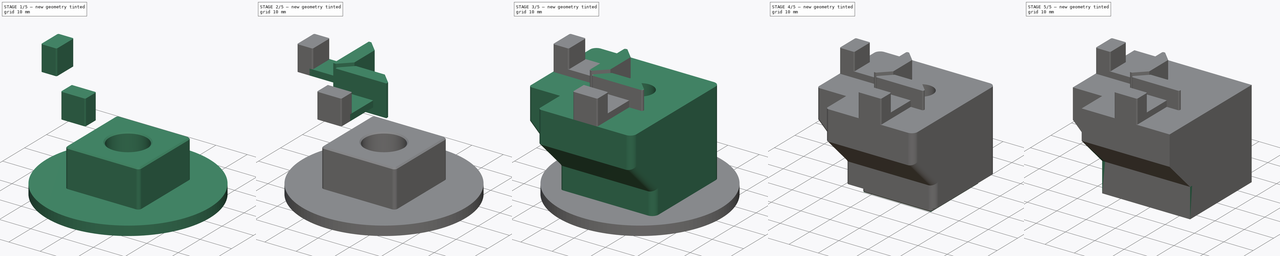
[diagram: build sequence overview — one tinted view per stage of 5, left to right]
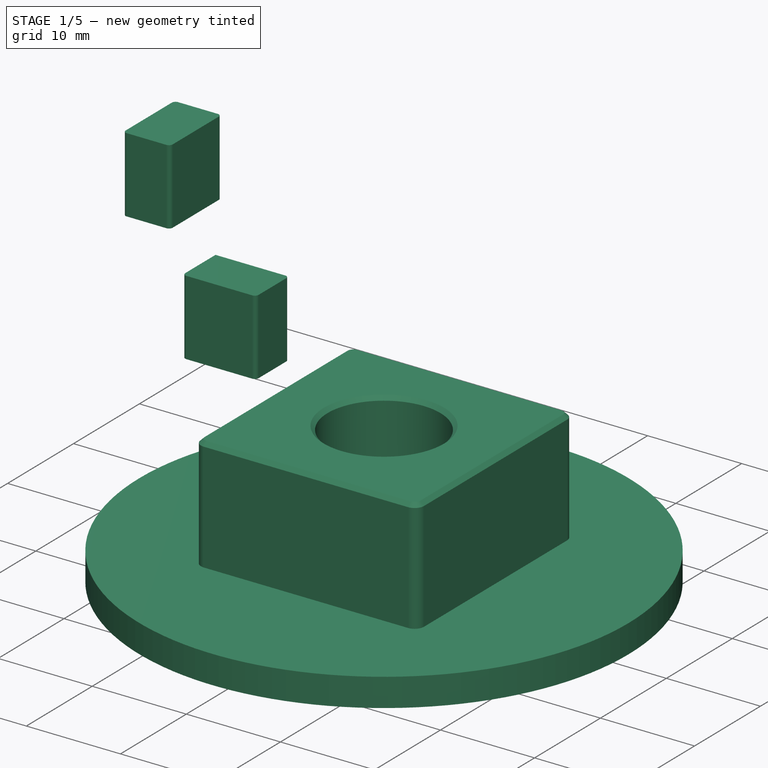
[diagram: stage 1 of 5 — iso view after this stage's code; geometry added in this stage tinted green]
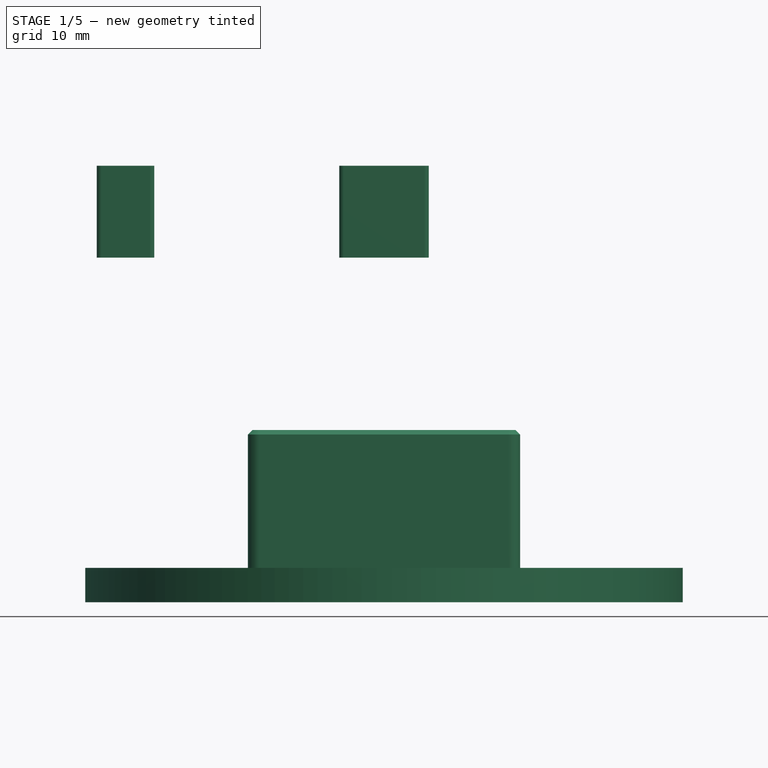
[diagram: stage 1 of 5 — front view after this stage's code; geometry added in this stage tinted green]
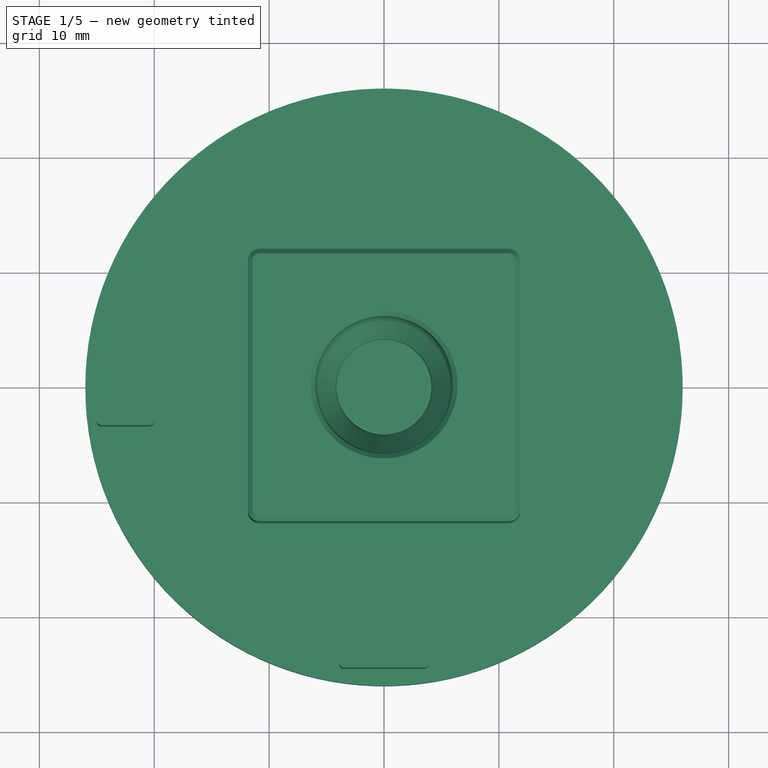
[diagram: stage 1 of 5 — top view after this stage's code; geometry added in this stage tinted green]
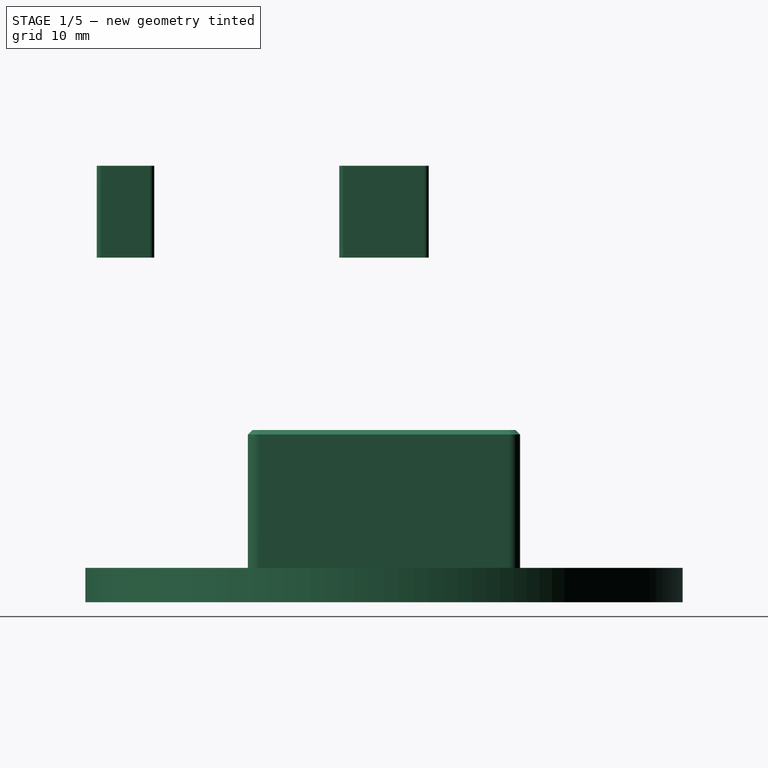
[diagram: stage 1 of 5 — right view after this stage's code; geometry added in this stage tinted green]
FCSTD DOCUMENT  (FreeCAD 0.19R24366 (Git))
Label: foot
License: All rights reserved
LicenseURL: http://en.wikipedia.org/wiki/All_rights_reserved
objects: Part::Box×17, Part::MultiFuse×8, Part::Cut×5, Part::Feature×4, Part::Chamfer×3, Part::Fillet×3, Part::Cylinder×3, Sketcher::SketchObject×2, PartDesign::Pad×1, PartDesign::Fillet×1, PartDesign::Groove×1, PartDesign::Chamfer×1, PartDesign::Body×1
note: 54 computed .brp shape members not serialized (recipe doc carries the construction recipe); baked Part::Feature solids carry a one-line shape summary decoded from their .brp

FEATURE [Part::Feature] Extrude002002003001  label="Extrude002002004"
  Placement = pos=(0,0,36) rot=(0,0,1;0rad)
  shape: bbox 30 x 30 x 1 mm, 95 faces (baked)
FEATURE [Part::Box] Box005  label="Cube005"
  AttacherType = Attacher::AttachEngine3D
  Height = 8
  Length = 7.8
  Placement = pos=(-3.9,-25,30) rot=(0,0,1;0rad)
  Width = 5
FEATURE [Part::Box] Box006  label="Cube006"
  AttacherType = Attacher::AttachEngine3D
  Height = 8
  Length = 5
  Placement = pos=(-25,-3.9,30) rot=(0,0,1;0rad)
  Width = 7.8
FEATURE [Part::MultiFuse] Fusion009
  Shapes = -> [Box005,Box006]
FEATURE [Part::Fillet] Fillet002
  Base = -> Fusion009
  Edges = 7 edges r=0.4: [Edge1,Edge5,Edge7,Edge13,Edge15,Edge17,Edge19]
FEATURE [Part::Cylinder] Cylinder002
  Angle = 360
  AttacherType = Attacher::AttachEngine3D
  Height = 3
  Radius = 26
FEATURE [Sketcher::SketchObject] Sketch
  FullyConstrained = true
  MapMode = 5
  Support = -> [XY_Plane]
  sketch-geometry (4):
    g0: LineSegment StartX=-11.85 StartY=11.85 StartZ=0 EndX=11.85 EndY=11.85 EndZ=0
    g1: LineSegment StartX=11.85 StartY=11.85 StartZ=0 EndX=11.85 EndY=-11.85 EndZ=0
    g2: LineSegment StartX=11.85 StartY=-11.85 StartZ=0 EndX=-11.85 EndY=-11.85 EndZ=0
    g3: LineSegment StartX=-11.85 StartY=-11.85 StartZ=0 EndX=-11.85 EndY=11.85 EndZ=0
  constraints (12):
    c: Coincident(g0,g1)
    c: Coincident(g1,g2)
    c: Coincident(g2,g3)
    c: Coincident(g3,g0)
    c: Horizontal(g0)
    c: Horizontal(g2)
    c: Vertical(g1)
    c: Vertical(g3)
    c: DistanceX(g0,g0) = 23.7
    c: DistanceX(g0,g-1) = 11.85
    c: DistanceY(g1,g1) = 23.7
    c: DistanceY(g-1,g0) = 11.85
FEATURE [PartDesign::Pad] Pad
  Direction = (1,1,1)
  Length = 15
  Length2 = 100
  Profile = -> Sketch
  Type = 0
FEATURE [PartDesign::Fillet] Fillet003
  Base = -> Pad [Edge1,Edge8,Edge2,Edge5]
  BaseFeature = -> Pad
  Radius = 1
  SupportTransform = false
FEATURE [Sketcher::SketchObject] Sketch001
  FullyConstrained = true
  MapMode = 5
  Placement = pos=(0,0,0) rot=(1,0,0;1.5708rad)
  Support = -> [XZ_Plane]
  sketch-geometry (6):
    g0: LineSegment StartX=0 StartY=0 StartZ=0 EndX=0 EndY=15 EndZ=0
    g1: LineSegment StartX=0 StartY=15 StartZ=0 EndX=-6 EndY=15 EndZ=0
    g2: LineSegment StartX=-6 StartY=15 StartZ=0 EndX=-6 EndY=6 EndZ=0
    g3: LineSegment StartX=-6 StartY=6 StartZ=0 EndX=-4 EndY=3 EndZ=0
    g4: LineSegment StartX=-4 StartY=3 StartZ=0 EndX=-4 EndY=0 EndZ=0
    g5: LineSegment StartX=-4 StartY=0 StartZ=0 EndX=0 EndY=0 EndZ=0
  constraints (17):
    c: Coincident(g-1,g0)
    c: Vertical(g0)
    c: Coincident(g0,g1)
    c: Horizontal(g1)
    c: Coincident(g1,g2)
    c: Vertical(g2)
    c: Coincident(g2,g3)
    c: Coincident(g3,g4)
    c: Vertical(g4)
    c: Coincident(g4,g5)
    c: Coincident(g5,g0)
    c: Horizontal(g5)
    c: DistanceX(g5,g5) = 4
    c: DistanceX(g2,g3) = 2
    c: DistanceY(g4,g4) = 3
    c: DistanceY(g3,g2) = 3
    c: DistanceY(g0,g0) = 15
FEATURE [PartDesign::Groove] Groove
  Angle = 360
  Axis = (0,2e-16,1)
  Base = (0,0,0)
  BaseFeature = -> Fillet003
  Profile = -> Sketch001
  ReferenceAxis = -> Sketch001 [V_Axis]
  Reversed = true
FEATURE [PartDesign::Chamfer] Chamfer002007
  Angle = 45
  Base = -> Groove [Face5,Face2,Edge27,Edge29]
  BaseFeature = -> Groove
  ChamferType = 0
  FlipDirection = false
  Size = 0.4
  Size2 = 1
  SupportTransform = false
FEATURE [PartDesign::Body] Body  label="flex-block"
  Group = -> [Sketch,Pad,Fillet003,Sketch001,Groove,Chamfer002007]
  Origin = -> Origin
  Placement = pos=(0,0,-5) rot=(0,0,1;0rad)
  Tip = -> Chamfer002007
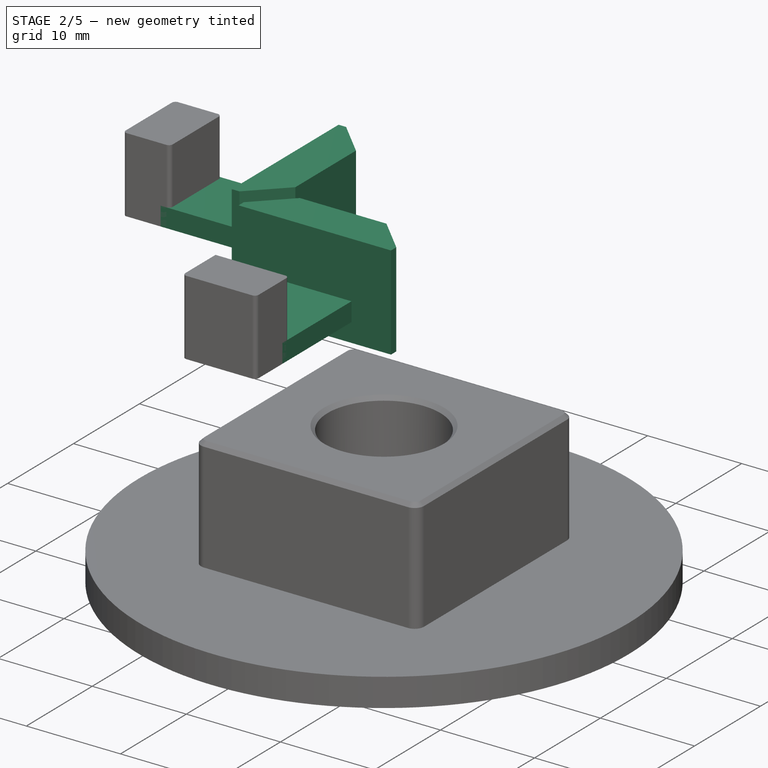
[diagram: stage 2 of 5 — iso view after this stage's code; geometry added in this stage tinted green]
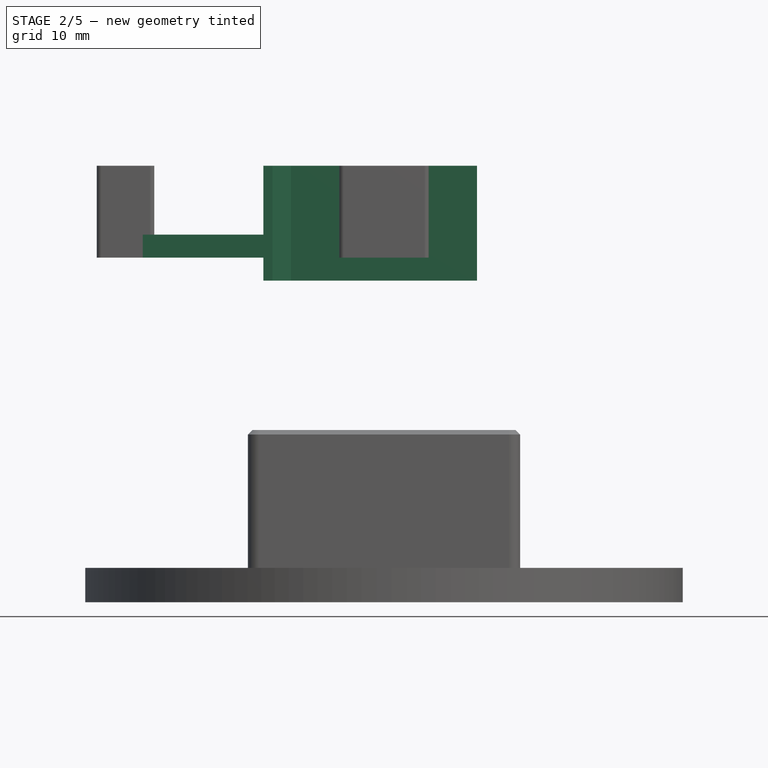
[diagram: stage 2 of 5 — front view after this stage's code; geometry added in this stage tinted green]
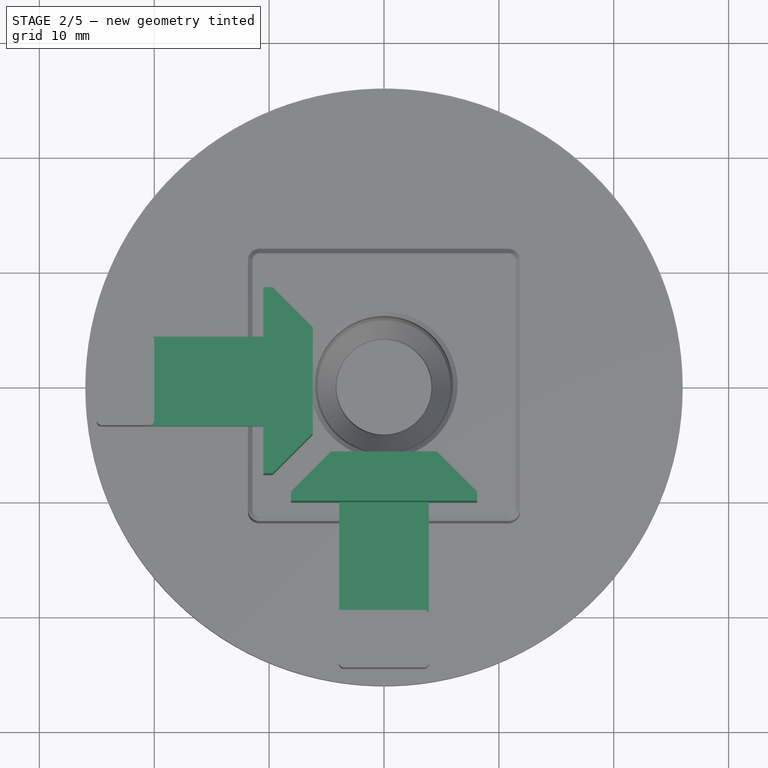
[diagram: stage 2 of 5 — top view after this stage's code; geometry added in this stage tinted green]
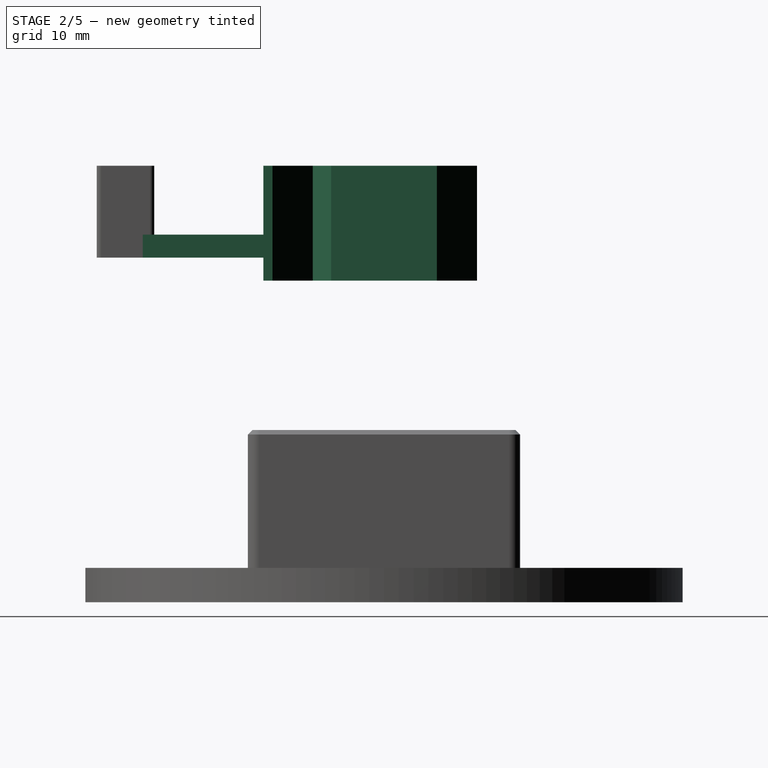
[diagram: stage 2 of 5 — right view after this stage's code; geometry added in this stage tinted green]
FEATURE [Part::Feature] Chamfer002005
  Placement = pos=(0,0,28) rot=(0,0,1;3.14159rad)
  shape: bbox 16.2 x 6.7 x 10 mm, 8 faces (baked)
FEATURE [Part::Feature] Chamfer002006
  Placement = pos=(0,0,28) rot=(0,0,1;1.5708rad)
  shape: bbox 6.7 x 16.2 x 10 mm, 8 faces (baked)
FEATURE [Part::Box] Box007  label="Cube007"
  AttacherType = Attacher::AttachEngine3D
  Height = 10
  Length = 4
  Placement = pos=(-14.5,-9,28) rot=(0,0,1;0rad)
  Width = 18
FEATURE [Part::MultiFuse] Fusion004
  Shapes = -> [Chamfer002006,Chamfer002005]
FEATURE [Part::Box] Box008  label="Cube008"
  AttacherType = Attacher::AttachEngine3D
  Height = 10
  Length = 18
  Placement = pos=(-9,-14.5,28) rot=(0,0,1;0rad)
  Width = 4
FEATURE [Part::MultiFuse] Fusion005
  Shapes = -> [Box007,Box008]
FEATURE [Part::Cut] Cut
  Base = -> Fusion004
  Tool = -> Fusion005
FEATURE [Part::Box] Box009  label="Cube009"
  AttacherType = Attacher::AttachEngine3D
  Height = 2
  Length = 7.8
  Placement = pos=(-3.9,-21,30) rot=(0,0,1;0rad)
  Width = 11
FEATURE [Part::Box] Box010  label="Cube010"
  AttacherType = Attacher::AttachEngine3D
  Height = 2
  Length = 11
  Placement = pos=(-21,-3.9,30) rot=(0,0,1;0rad)
  Width = 7.8
FEATURE [Part::MultiFuse] Fusion006
  Shapes = -> [Box010,Box009]
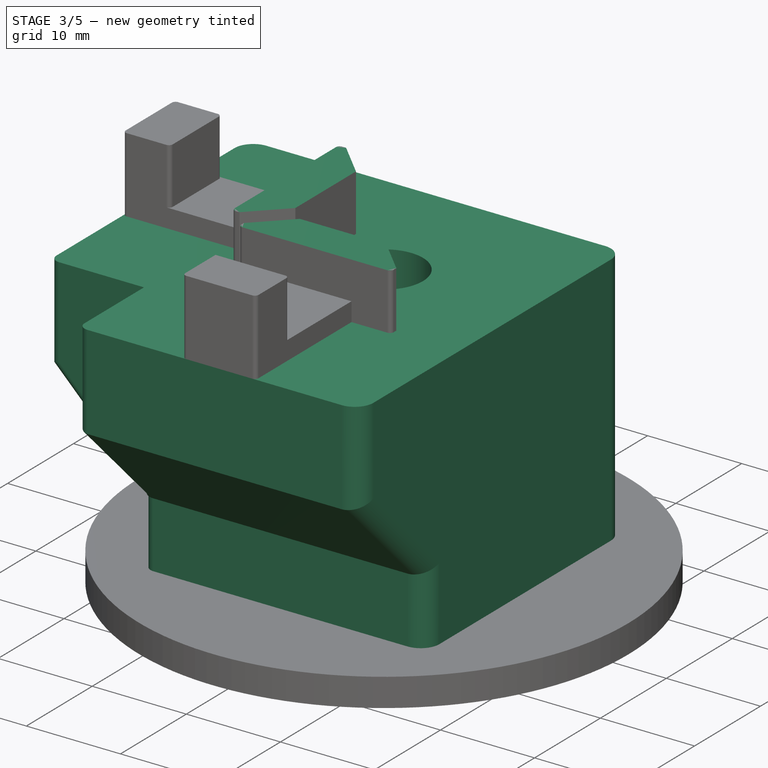
[diagram: stage 3 of 5 — iso view after this stage's code; geometry added in this stage tinted green]
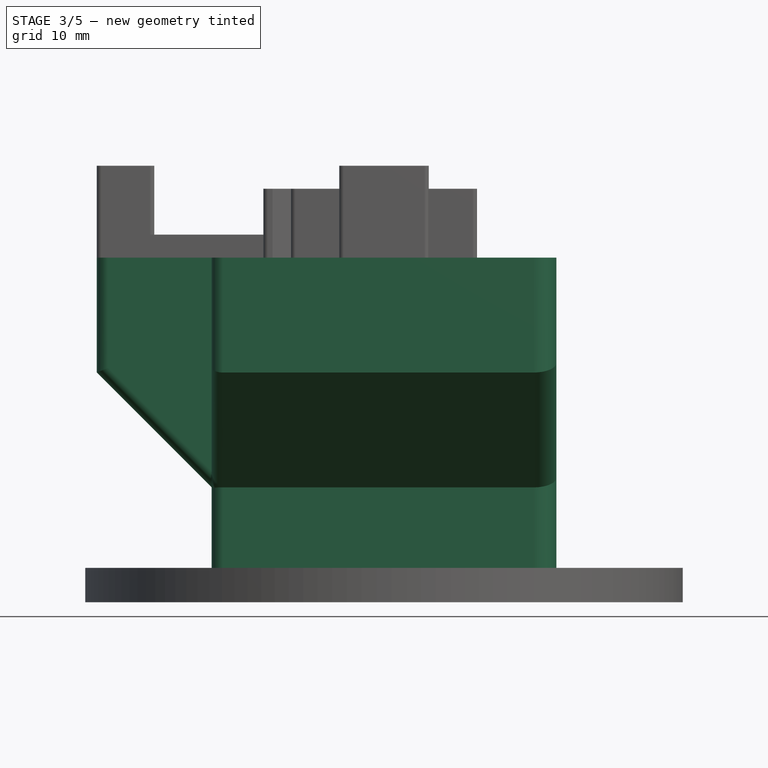
[diagram: stage 3 of 5 — front view after this stage's code; geometry added in this stage tinted green]
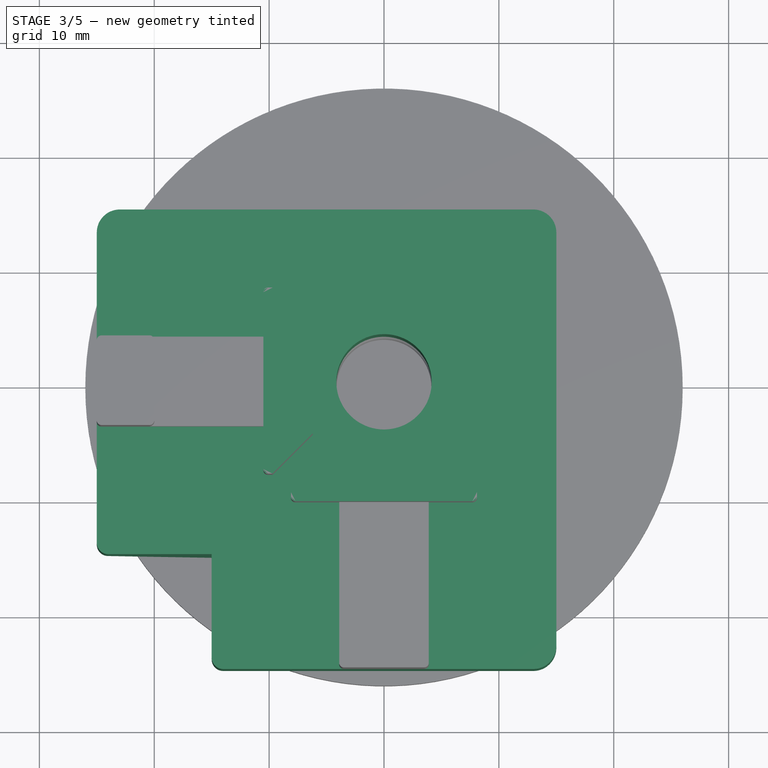
[diagram: stage 3 of 5 — top view after this stage's code; geometry added in this stage tinted green]
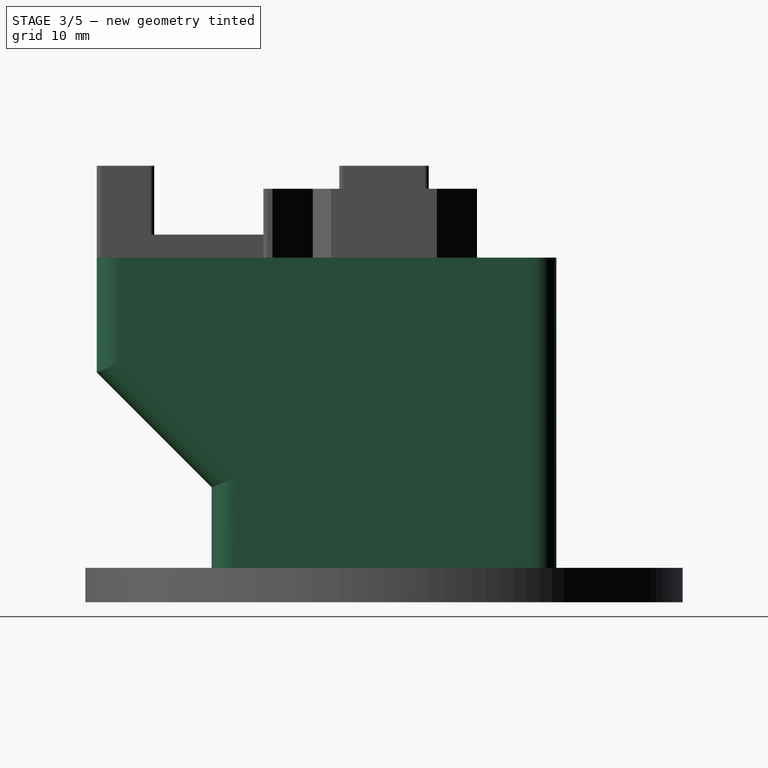
[diagram: stage 3 of 5 — right view after this stage's code; geometry added in this stage tinted green]
FEATURE [Part::Feature] Fusion001
  shape: bbox 40 x 40 x 30 mm, 12 faces (baked)
FEATURE [Part::Fillet] Fillet
  Base = -> Fusion001
  Edges = 12 edges: [Edge1 r=1,Edge3 r=2,Edge5 r=2,Edge8 r=1,Edge10 r=2,Edge13 r=1,Edge15 r=2,Edge18 r=1,Edge20 r=2,Edge21 r=1,Edge23 r=2,Edge25 r=2]
FEATURE [Part::Box] Box003  label="Cube003"
  AttacherType = Attacher::AttachEngine3D
  Height = 10
  Length = 24
  Placement = pos=(-12,-12,0) rot=(0,0,1;0rad)
  Width = 24
FEATURE [Part::Fillet] Fillet001
  Base = -> Cut
  Edges = 4 edges r=0.4: [Edge2,Edge10,Edge20,Edge29]
  Placement = pos=(0,0,-2) rot=(0,0,1;0rad)
FEATURE [Part::Cylinder] Cylinder
  Angle = 360
  AttacherType = Attacher::AttachEngine3D
  Height = 7
  Placement = pos=(0,0,10) rot=(0,0,1;0rad)
  Radius = 7.5
FEATURE [Part::Cylinder] Cylinder001
  Angle = 360
  AttacherType = Attacher::AttachEngine3D
  Height = 43
  Radius = 4.15
FEATURE [Part::MultiFuse] Fusion008
  Shapes = -> [Cylinder001,Cylinder]
FEATURE [Part::MultiFuse] Fusion010
  Shapes = -> [Fillet002,Fillet,Fusion006,Fillet001]
FEATURE [Part::Cut] Cut001
  Base = -> Fusion010
  Tool = -> Fusion008
FEATURE [Part::Cut] Cut002
  Base = -> Cut001
  Tool = -> Box003
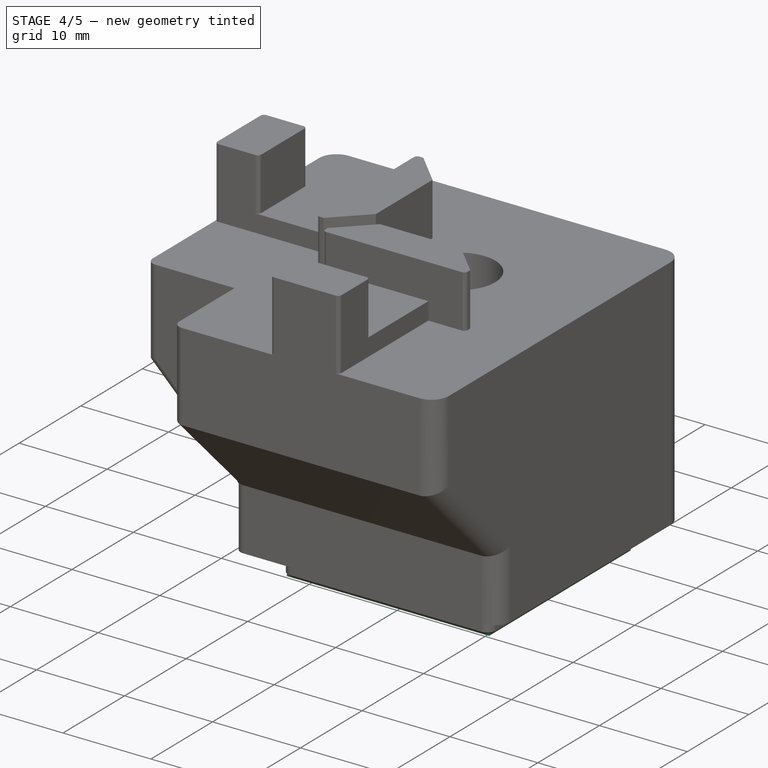
[diagram: stage 4 of 5 — iso view after this stage's code; geometry added in this stage tinted green]
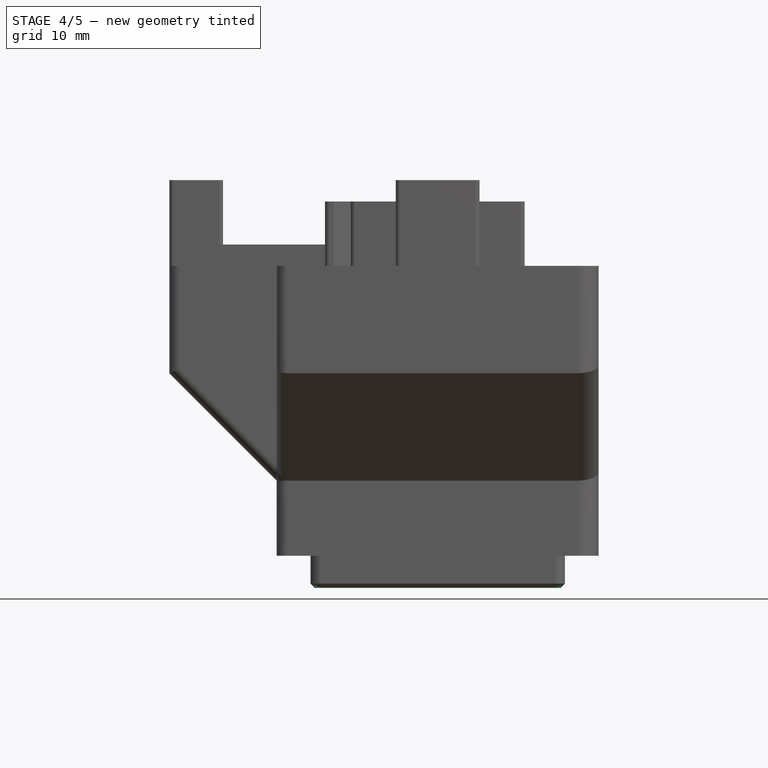
[diagram: stage 4 of 5 — front view after this stage's code; geometry added in this stage tinted green]
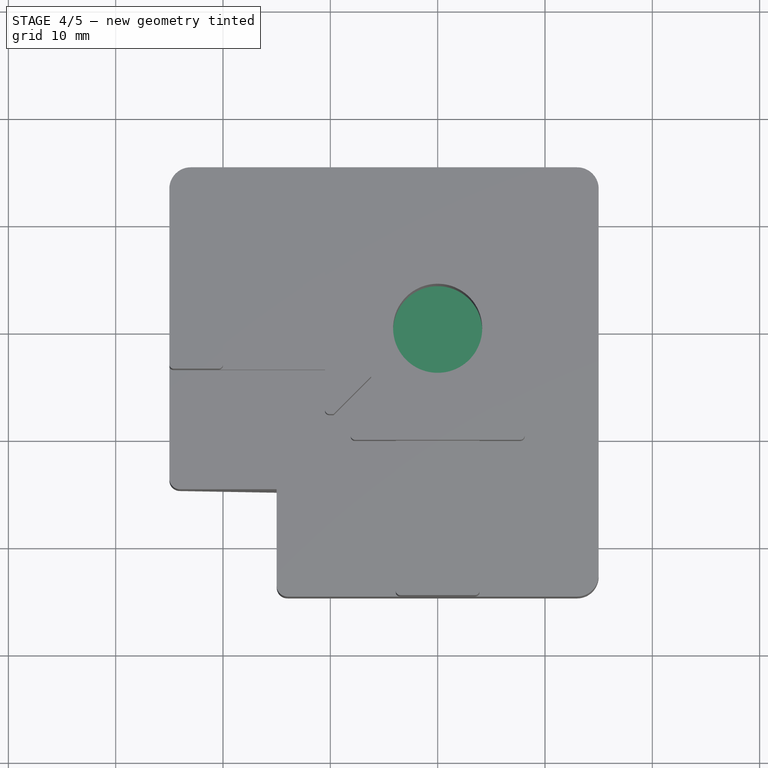
[diagram: stage 4 of 5 — top view after this stage's code; geometry added in this stage tinted green]
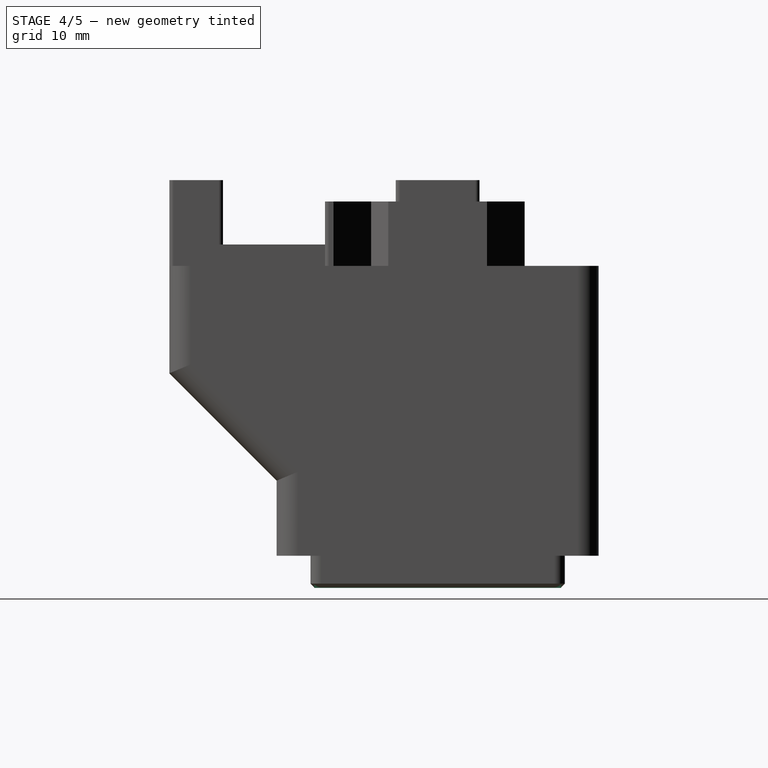
[diagram: stage 4 of 5 — right view after this stage's code; geometry added in this stage tinted green]
FEATURE [Part::Box] Box011  label="Cube011"
  AttacherType = Attacher::AttachEngine3D
  Height = 12
  Length = 23
  Placement = pos=(-11.5,-11.5,0) rot=(0,0,1;0rad)
  Width = 23
FEATURE [Part::Box] Box012  label="Cube012"
  AttacherType = Attacher::AttachEngine3D
  Height = 1
  Length = 2
  Placement = pos=(-11.5,-11.5,0) rot=(0,0,1;0rad)
  Width = 23
FEATURE [Part::Box] Box013  label="Cube013"
  AttacherType = Attacher::AttachEngine3D
  Height = 1
  Length = 2
  Placement = pos=(-6.5,-11.5,0) rot=(0,0,1;0rad)
  Width = 23
FEATURE [Part::Box] Box014  label="Cube014"
  AttacherType = Attacher::AttachEngine3D
  Height = 1
  Length = 2
  Placement = pos=(-1.5,-11.5,0) rot=(0,0,1;0rad)
  Width = 23
FEATURE [Part::Box] Box015  label="Cube015"
  AttacherType = Attacher::AttachEngine3D
  Height = 1
  Length = 2
  Placement = pos=(3.5,-11.5,0) rot=(0,0,1;0rad)
  Width = 23
FEATURE [Part::Box] Box016  label="Cube016"
  AttacherType = Attacher::AttachEngine3D
  Height = 1
  Length = 2
  Placement = pos=(8.5,-11.5,0) rot=(0,0,1;0rad)
  Width = 23
FEATURE [Part::MultiFuse] Fusion011
  Shapes = -> [Box016,Box015,Box014,Box013,Box012]
FEATURE [Part::Cut] Cut002003
  Base = -> Cut002
  Tool = -> Cylinder002
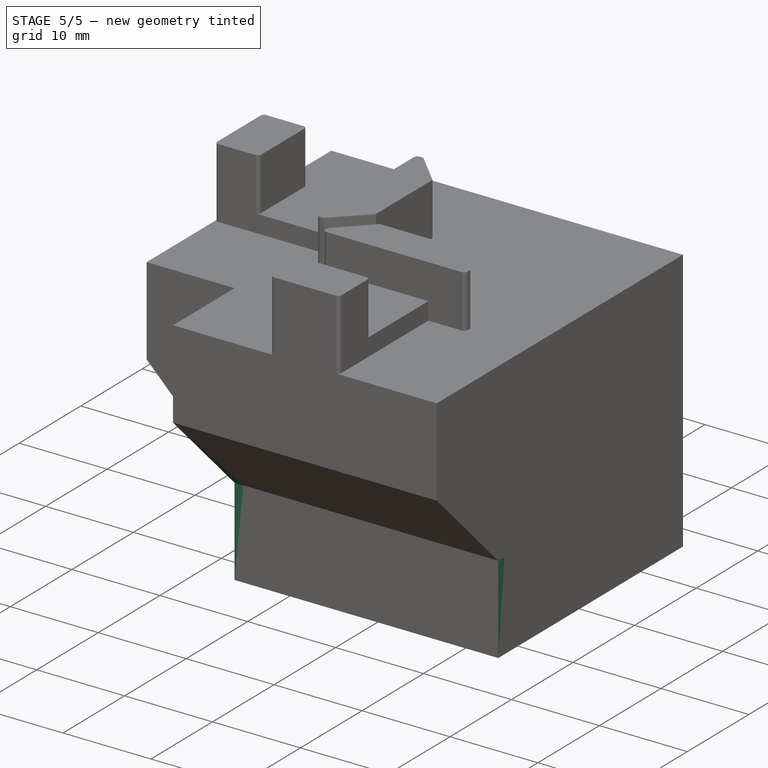
[diagram: stage 5 of 5 — iso view after this stage's code; geometry added in this stage tinted green]
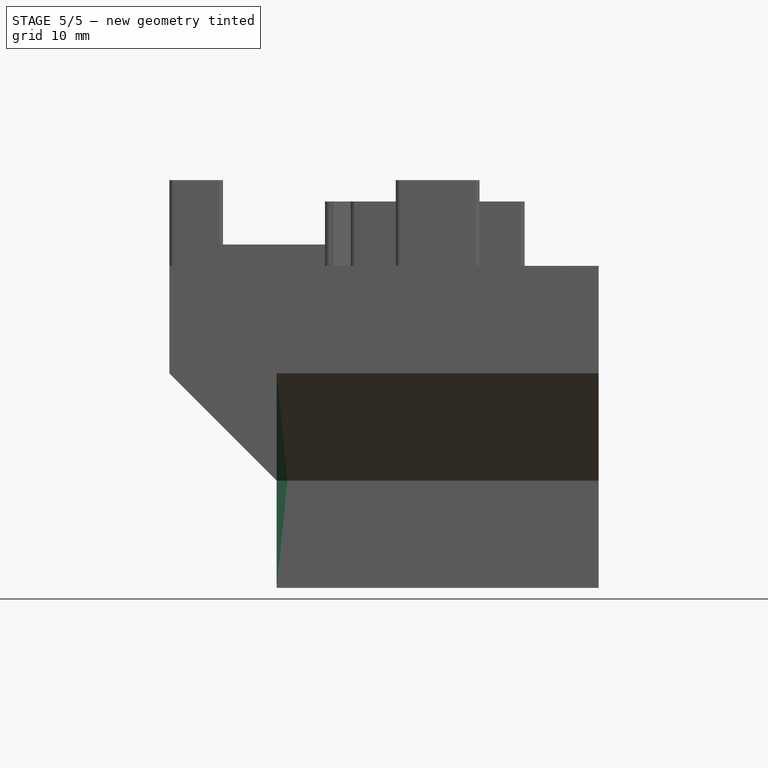
[diagram: stage 5 of 5 — front view after this stage's code; geometry added in this stage tinted green]
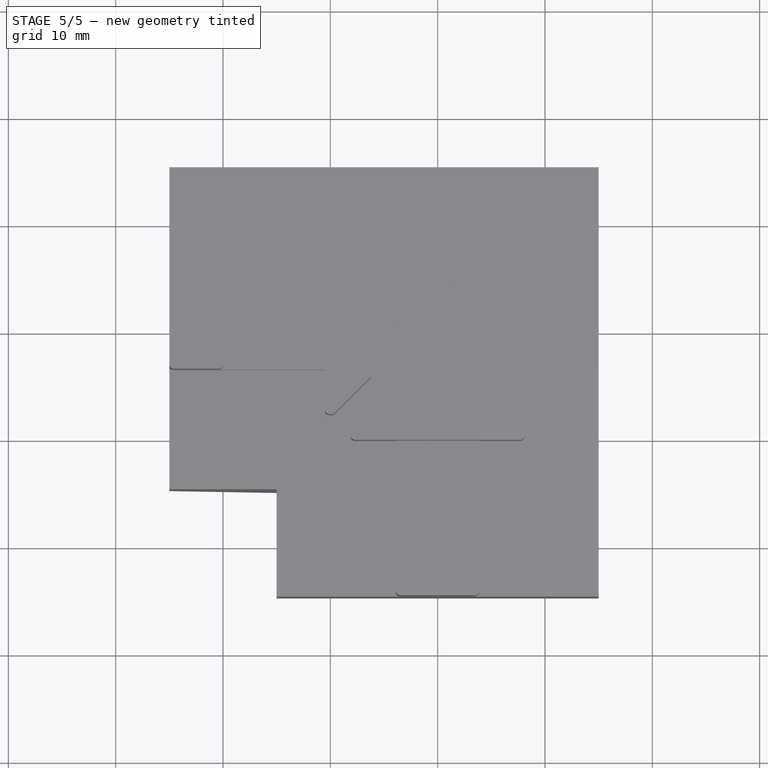
[diagram: stage 5 of 5 — top view after this stage's code; geometry added in this stage tinted green]
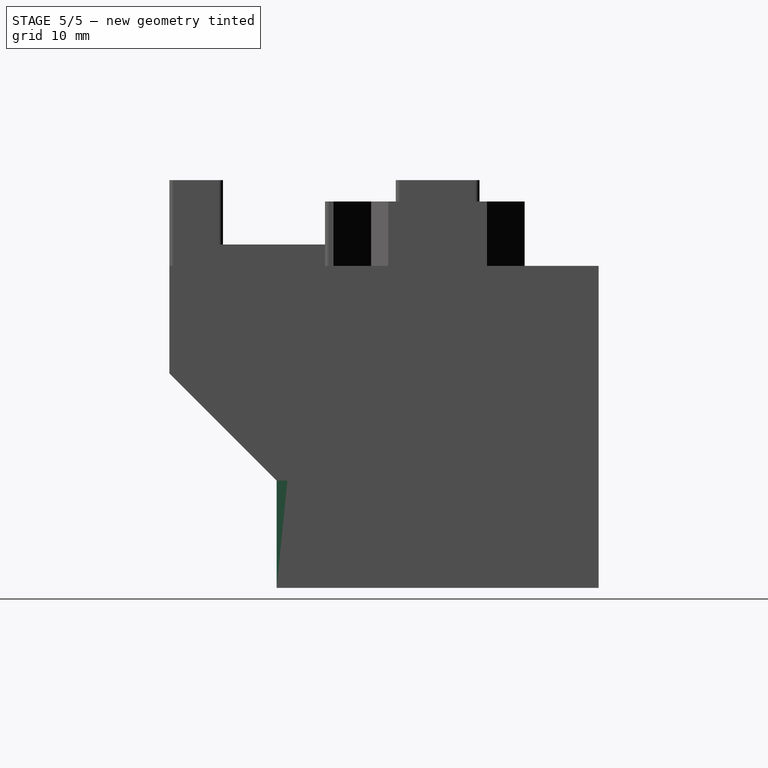
[diagram: stage 5 of 5 — right view after this stage's code; geometry added in this stage tinted green]
FEATURE [Part::Box] Box  label="Cube"
  AttacherType = Attacher::AttachEngine3D
  Height = 30
  Length = 30
  Placement = pos=(-15,-15,0) rot=(0,0,1;0rad)
  Width = 30
FEATURE [Part::Box] Box001  label="Cube001"
  AttacherType = Attacher::AttachEngine3D
  Height = 20
  Length = 11
  Placement = pos=(-25,-15,10) rot=(0,0,1;0rad)
  Width = 30
FEATURE [Part::Box] Box002  label="Cube002"
  AttacherType = Attacher::AttachEngine3D
  Height = 20
  Length = 30
  Placement = pos=(-15,-25,10) rot=(0,0,1;0rad)
  Width = 11
FEATURE [Part::Chamfer] Chamfer
  Base = -> Box002
  Edges = 1 edges r=10: [Edge9]
FEATURE [Part::Chamfer] Chamfer001
  Base = -> Box001
  Edges = 1 edges r=10: [Edge4]
FEATURE [Part::MultiFuse] Fusion
  Shapes = -> [Chamfer001,Chamfer,Box]
FEATURE [Part::Box] Box004  label="Cube004"
  AttacherType = Attacher::AttachEngine3D
  Height = 10
  Length = 16.2
  Placement = pos=(-8.1,6.2,0) rot=(0,0,1;0rad)
  Width = 6.7
FEATURE [Part::Chamfer] Chamfer002
  Base = -> Box004
  Edges = 2 edges r=3.5: [Edge1,Edge5]
FEATURE [Part::Cut] Cut002002  label="rubber-pad"
  Base = -> Box011
  Tool = -> Fusion011
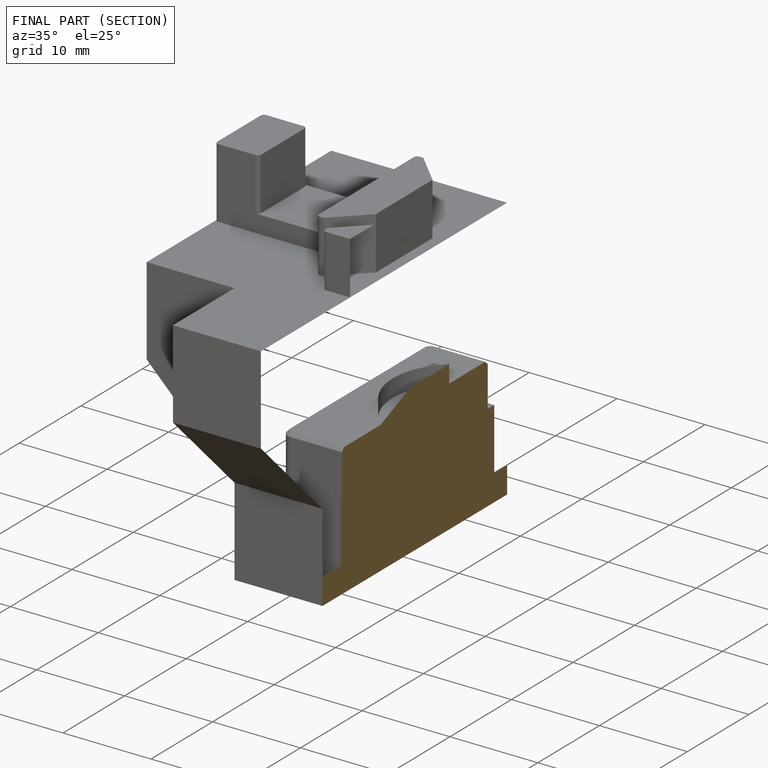
[diagram: finished part — half-section view (interior)]
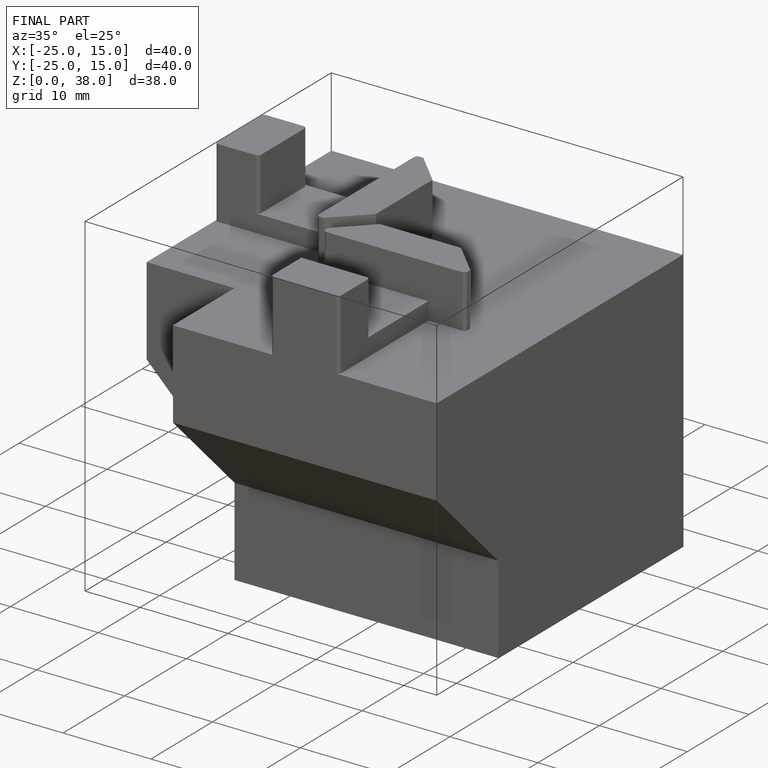
[diagram: finished part — iso view with bounding-box wireframe]
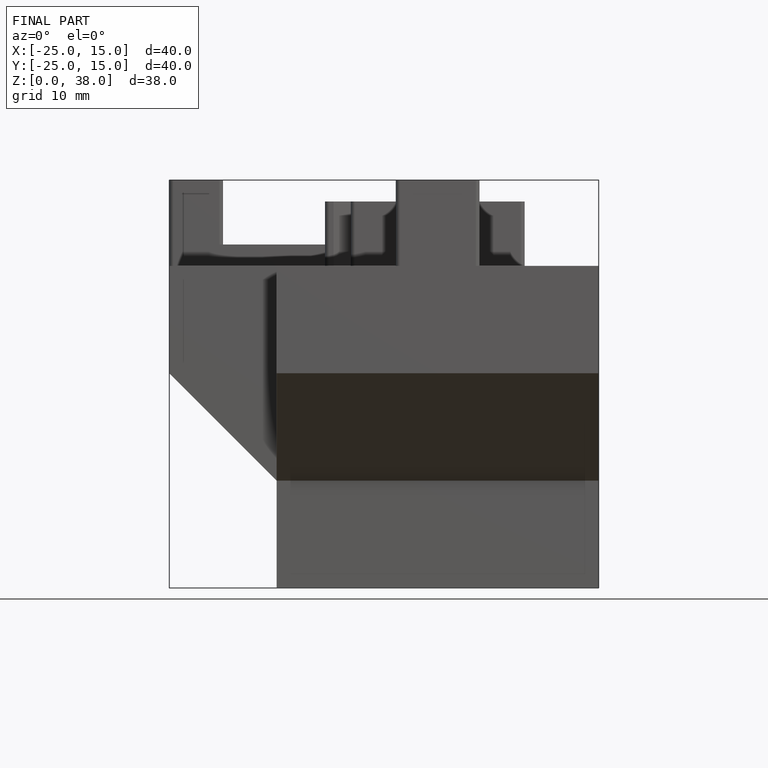
[diagram: finished part — front view with bounding-box wireframe]
